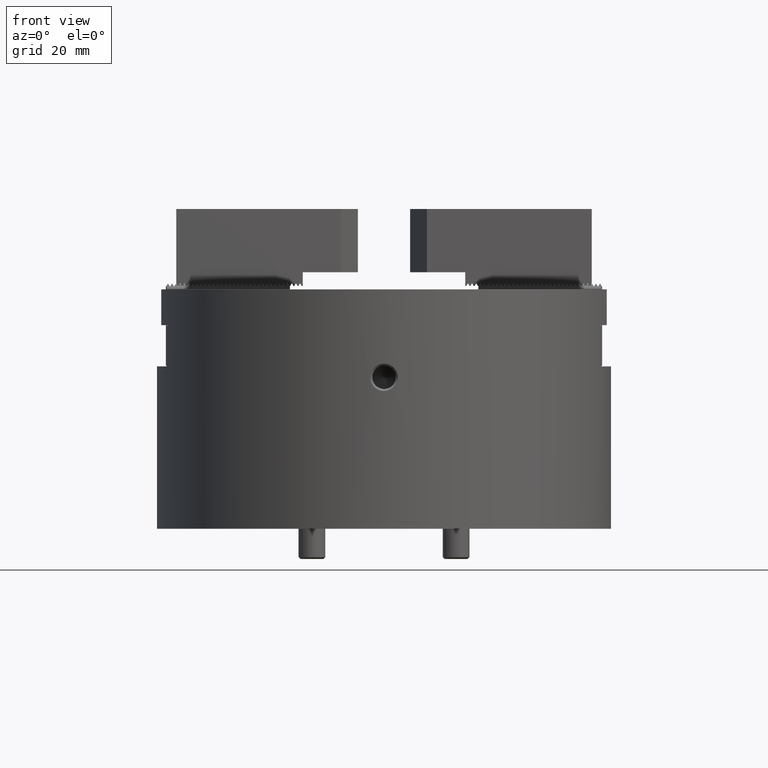
[diagram: clean part render]
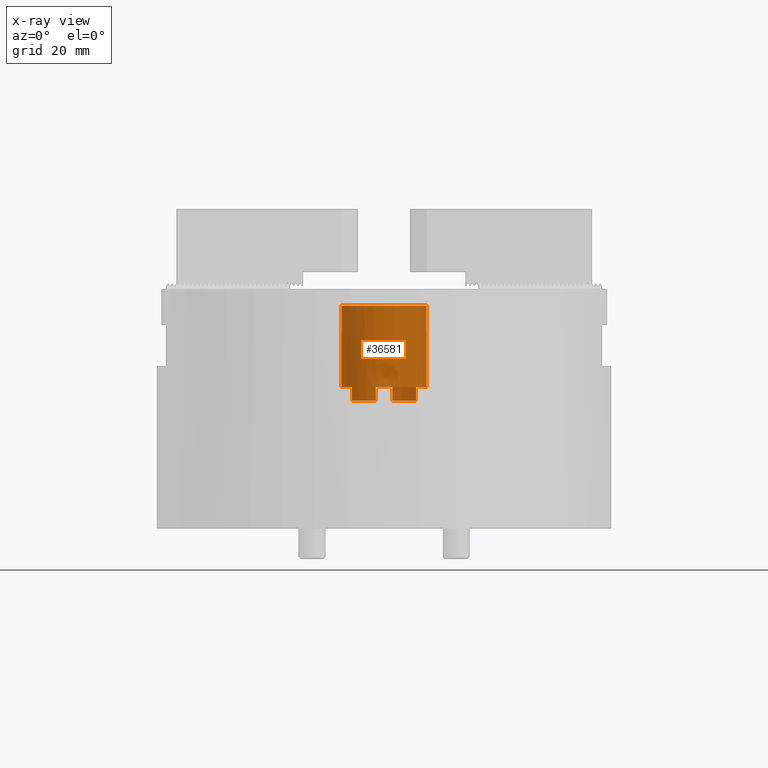
[diagram: x-ray — body ghosted, one internal face saturated and labeled with its STEP entity id]
A machine part, front view, then the same camera in x-ray: the body is ghosted and one INTERNAL B-rep face — a face not visible from any outside direction — is saturated and labeled: STEP entity #36581.
In plain terms, the highlighted cylindrical surface (bore or boss wall) has radius 15.5 mm, axis along (0, 0, -1).
Its self-contained STEP definition (entity closure, byte-faithful):
#909=CYLINDRICAL_SURFACE('',#39026,15.5);
#1069=CIRCLE('',#37112,15.5);
#1086=CIRCLE('',#37140,15.5);
#1088=CIRCLE('',#37147,15.5);
#1090=CIRCLE('',#37150,15.5);
#1456=CIRCLE('',#39012,15.5);
#11850=ORIENTED_EDGE('',*,*,#17473,.T.);
#11851=ORIENTED_EDGE('',*,*,#13031,.T.);
#11852=ORIENTED_EDGE('',*,*,#13011,.T.);
#11853=ORIENTED_EDGE('',*,*,#13019,.T.);
#11854=ORIENTED_EDGE('',*,*,#13021,.T.);
#11855=ORIENTED_EDGE('',*,*,#13015,.T.);
#11856=ORIENTED_EDGE('',*,*,#12994,.T.);
#11857=ORIENTED_EDGE('',*,*,#13028,.T.);
#11858=ORIENTED_EDGE('',*,*,#13024,.T.);
#12994=EDGE_CURVE('',#18165,#18167,#1069,.T.);
#13011=EDGE_CURVE('',#18182,#18184,#1086,.T.);
#13015=EDGE_CURVE('',#18186,#18165,#21612,.T.);
#13019=EDGE_CURVE('',#18184,#18190,#21616,.T.);
#13021=EDGE_CURVE('',#18190,#18186,#1088,.T.);
#13024=EDGE_CURVE('',#18194,#18193,#1090,.T.);
#13028=EDGE_CURVE('',#18167,#18194,#21621,.T.);
#13031=EDGE_CURVE('',#18193,#18182,#21624,.T.);
#17473=EDGE_CURVE('',#21006,#21006,#1456,.T.);
#18165=VERTEX_POINT('',#52609);
#18167=VERTEX_POINT('',#52613);
#18182=VERTEX_POINT('',#52654);
#18184=VERTEX_POINT('',#52658);
#18186=VERTEX_POINT('',#52665);
#18190=VERTEX_POINT('',#52676);
#18193=VERTEX_POINT('',#52686);
#18194=VERTEX_POINT('',#52688);
#21006=VERTEX_POINT('',#61189);
#21612=LINE('',#52669,#26007);
#21616=LINE('',#52677,#26011);
#21621=LINE('',#52694,#26016);
#21624=LINE('',#52699,#26019);
#26007=VECTOR('',#40499,1000.);
#26011=VECTOR('',#40505,1000.);
#26016=VECTOR('',#40524,1000.);
#26019=VECTOR('',#40529,1000.);
#31668=EDGE_LOOP('',(#11850));
#31669=EDGE_LOOP('',(#11851,#11852,#11853,#11854,#11855,#11856,#11857,#11858));
#33628=FACE_BOUND('',#31668,.T.);
#33629=FACE_BOUND('',#31669,.T.);
#36581=ADVANCED_FACE('',(#33628,#33629),#909,.T.);
#37112=AXIS2_PLACEMENT_3D('',#52614,#40432,#40433);
#37140=AXIS2_PLACEMENT_3D('',#52659,#40488,#40489);
#37147=AXIS2_PLACEMENT_3D('',#52680,#40510,#40511);
#37150=AXIS2_PLACEMENT_3D('',#52687,#40517,#40518);
#39012=AXIS2_PLACEMENT_3D('',#61188,#48068,#48069);
#39026=AXIS2_PLACEMENT_3D('',#61220,#48112,#48113);
#40432=DIRECTION('',(0.,0.,1.));
#40433=DIRECTION('',(-0.5,-0.866025403784438,0.));
#40488=DIRECTION('',(0.,0.,1.));
#40489=DIRECTION('',(-0.5,-0.866025403784438,0.));
#40499=DIRECTION('',(0.,0.,1.));
#40505=DIRECTION('',(0.,0.,-1.));
#40510=DIRECTION('',(0.,0.,1.));
#40511=DIRECTION('',(-0.5,-0.866025403784438,0.));
#40517=DIRECTION('',(0.,0.,1.));
#40518=DIRECTION('',(-0.5,-0.866025403784438,0.));
#40524=DIRECTION('',(0.,0.,-1.));
#40529=DIRECTION('',(0.,0.,1.));
#48068=DIRECTION('',(0.,0.,-1.));
#48069=DIRECTION('',(0.,-1.,0.));
#48112=DIRECTION('',(0.,0.,-1.));
#48113=DIRECTION('',(0.,-1.,0.));
#52609=CARTESIAN_POINT('',(-3.00557335663841,-15.2058057595731,-35.5));
#52613=CARTESIAN_POINT('',(11.6658273944828,10.2058057595731,-35.5));
#52614=CARTESIAN_POINT('',(0.,0.,-35.5));
#52654=CARTESIAN_POINT('',(3.00557335663841,15.2058057595731,-35.5));
#52658=CARTESIAN_POINT('',(-11.6658273944828,-10.205805759573,-35.5));
#52659=CARTESIAN_POINT('',(0.,0.,-35.5));
#52665=CARTESIAN_POINT('',(-3.00557335663841,-15.2058057595731,-40.5));
#52669=CARTESIAN_POINT('',(-3.00557335663841,-15.2058057595731,-79.5));
#52676=CARTESIAN_POINT('',(-11.6658273944828,-10.205805759573,-40.5));
#52677=CARTESIAN_POINT('',(-11.6658273944828,-10.205805759573,-79.5));
#52680=CARTESIAN_POINT('',(0.,0.,-40.5));
#52686=CARTESIAN_POINT('',(3.00557335663841,15.2058057595731,-40.5));
#52687=CARTESIAN_POINT('',(0.,0.,-40.5));
#52688=CARTESIAN_POINT('',(11.6658273944828,10.205805759573,-40.5));
#52694=CARTESIAN_POINT('',(11.6658273944828,10.205805759573,-79.5));
#52699=CARTESIAN_POINT('',(3.00557335663841,15.2058057595731,-79.5));
#61188=CARTESIAN_POINT('',(-2.81148802155906E-14,0.,-6.));
#61189=CARTESIAN_POINT('',(-2.81148802155906E-14,-15.5,-6.));
#61220=CARTESIAN_POINT('',(-2.81148802155906E-14,0.,-45.));